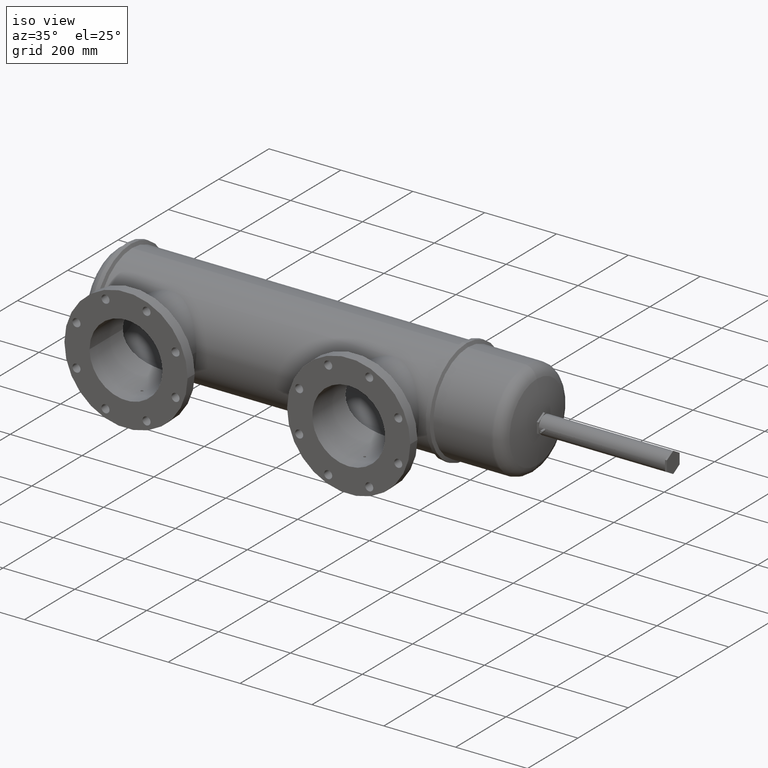
[diagram: clean part render]
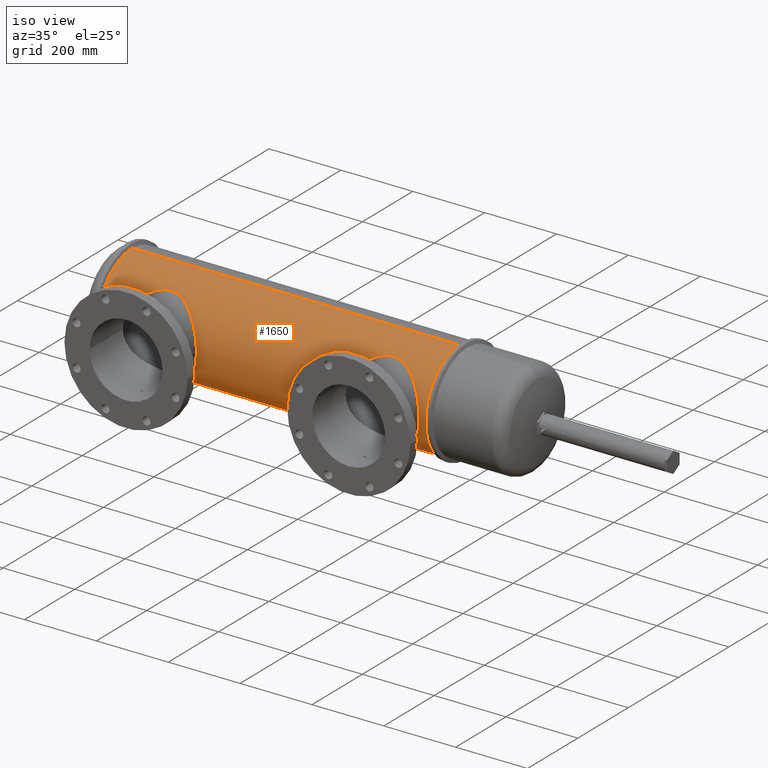
[diagram: same view with one face highlighted and labeled with its STEP entity id]
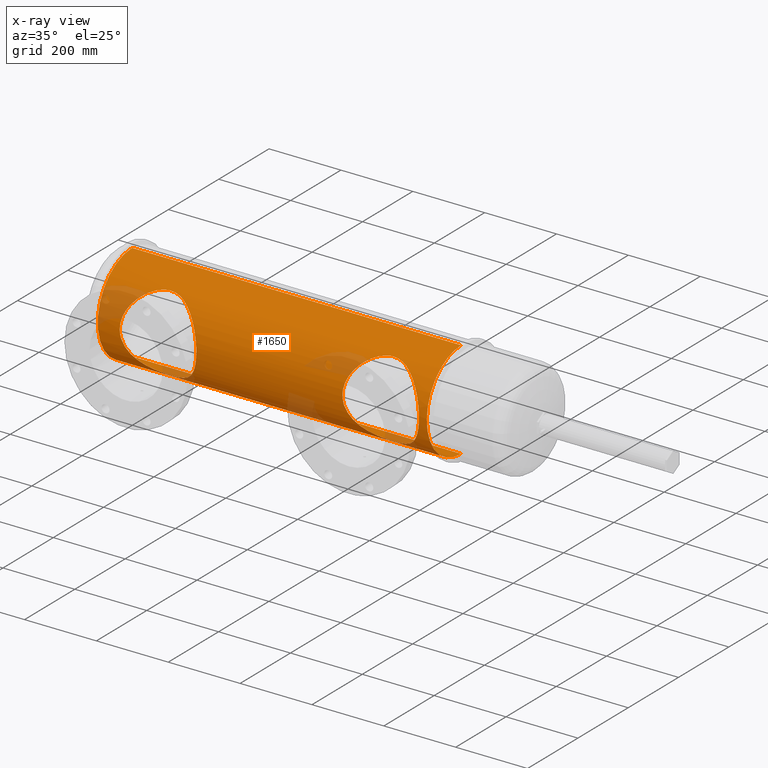
[diagram: x-ray of the same camera — body ghosted, the highlighted face saturated]
A machine part, iso view. The second image highlights one B-rep face of the part: STEP entity #1650.
The next image is the same camera in x-ray: the body ghosted, the highlighted face saturated — about 10% of this face is hidden behind the body in this view.
In plain terms, the highlighted cylindrical surface (partial cylindrical patch) has radius 136.525 mm, axis along (-1, -0, -0).
Its self-contained STEP definition (entity closure, byte-faithful):
#10 = CARTESIAN_POINT ( 'NONE',  ( 4.749995301061234800, -5.363052050226307300, -0.3654421097501814900 ) ) ;
#34 = CARTESIAN_POINT ( 'NONE',  ( 33.18546208266219800, -3.358127055180555300, -4.196850393700788800 ) ) ;
#48 = CARTESIAN_POINT ( 'NONE',  ( 34.04641906771569600, -3.430785840949731800, 4.137902672639088000 ) ) ;
#64 = CARTESIAN_POINT ( 'NONE',  ( 8.352158639856726900, -3.404754503453832900, 4.159180794707145500 ) ) ;
#65 = CARTESIAN_POINT ( 'NONE',  ( 4.737087465995205800, -5.373124396670126800, -0.1464357836292402300 ) ) ;
#86 = CARTESIAN_POINT ( 'NONE',  ( 29.20868822710924900, -5.317417034765235900, 0.7854535394784730700 ) ) ;
#88 = CARTESIAN_POINT ( 'NONE',  ( 7.734239354073992000, -3.565045451971925200, 4.022590618493392600 ) ) ;
#104 = CARTESIAN_POINT ( 'NONE',  ( 31.81343730272201100, -3.683660854557290000, -3.914959244769106400 ) ) ;
#109 = EDGE_CURVE ( 'NONE', #4416, #2132, #3197, .T. ) ;
#127 = CARTESIAN_POINT ( 'NONE',  ( 32.20156181433111400, -3.541031559088959400, -4.044189560633388900 ) ) ;
#130 = CARTESIAN_POINT ( 'NONE',  ( 7.408594226887629500, -3.685674176473716600, 3.913061992603212000 ) ) ;
#154 = FACE_BOUND ( 'NONE', #480, .T. ) ;
#160 = CARTESIAN_POINT ( 'NONE',  ( 30.20644312807175800, -4.587174237511723300, -2.802083508609902700 ) ) ;
#162 = CARTESIAN_POINT ( 'NONE',  ( 5.457733813823478100, -4.831581867657051900, 2.355279546981733100 ) ) ;
#174 = CARTESIAN_POINT ( 'NONE',  ( 38.38716324105480700, -3.278692041492476100, 4.273699459878847600 ) ) ;
#182 = CARTESIAN_POINT ( 'NONE',  ( 29.18029474302874200, -5.339462384616327400, -0.6180641936059125800 ) ) ;
#184 = CARTESIAN_POINT ( 'NONE',  ( 9.927133313563068400, -3.500032091392957200, 4.079503960908294100 ) ) ;
#199 = CARTESIAN_POINT ( 'NONE',  ( 34.72112591175518000, -3.632186258417040600, 3.962528690054355700 ) ) ;
#210 = CARTESIAN_POINT ( 'NONE',  ( 32.13785929113243600, -3.563831499023849300, 4.023665958639855800 ) ) ;
#211 = CARTESIAN_POINT ( 'NONE',  ( 9.435351120393324500, -3.394967481054748300, 4.167121872088777900 ) ) ;
#234 = CARTESIAN_POINT ( 'NONE',  ( 30.77819926925150900, -4.217855145016429200, 3.333314355170968300 ) ) ;
#235 = CARTESIAN_POINT ( 'NONE',  ( 11.16372585669081000, -4.031351664281814400, 3.556384141775962500 ) ) ;
#268 = CARTESIAN_POINT ( 'NONE',  ( 12.72643495695358600, -5.067236362355173700, 1.797786190896903300 ) ) ;
#289 = CARTESIAN_POINT ( 'NONE',  ( 9.613393546960630000, -3.426473264370500700, 4.141247085288737800 ) ) ;
#315 = CARTESIAN_POINT ( 'NONE',  ( 32.61575512459241800, -3.430964239514853200, 4.137756497397060900 ) ) ;
#344 = CARTESIAN_POINT ( 'NONE',  ( 33.33154199806774200, -3.358127055180554400, 4.196850393700788800 ) ) ;
#412 = EDGE_LOOP ( 'NONE', ( #4571, #3496, #5434, #744 ) ) ;
#425 = CARTESIAN_POINT ( 'NONE',  ( 11.78221561436801000, -4.404365714261560400, -3.082911548880091800 ) ) ;
#451 = CARTESIAN_POINT ( 'NONE',  ( 13.00991905616390200, -5.282975576761431900, -1.000471700866089900 ) ) ;
#468 = CARTESIAN_POINT ( 'NONE',  ( 11.48312885113492300, -4.216791418058220700, -3.334658646461985000 ) ) ;
#480 = EDGE_LOOP ( 'NONE', ( #1019, #6233 ) ) ;
#495 = CARTESIAN_POINT ( 'NONE',  ( 13.09869315880251700, -5.351835610164204800, -0.5036151610163508400 ) ) ;
#507 = CARTESIAN_POINT ( 'NONE',  ( 38.38716222089863800, -3.291238495927409500E-016, -5.374996292006944300 ) ) ;
#520 = CARTESIAN_POINT ( 'NONE',  ( 11.21425565118580500, -4.060269414026393500, -3.522371304407778200 ) ) ;
#546 = CARTESIAN_POINT ( 'NONE',  ( 33.90938549790716600, -3.404536396559057400, -4.159358183805486500 ) ) ;
#558 = CARTESIAN_POINT ( 'NONE',  ( 33.33154199806774200, -3.358127055180555800, -4.196850393700788800 ) ) ;
#559 = CARTESIAN_POINT ( 'NONE',  ( 5.054724875804097000, -5.129001275243231500, -1.607817231629513200 ) ) ;
#561 = CARTESIAN_POINT ( 'NONE',  ( 34.25750378459337500, -3.483293056720552900, -4.093579681073324000 ) ) ;
#590 = LINE ( 'NONE', #3139, #1548 ) ;
#612 = CARTESIAN_POINT ( 'NONE',  ( 6.078935628600526700, -4.405613760487821800, -3.081144902378614600 ) ) ;
#632 = CARTESIAN_POINT ( 'NONE',  ( 4.975464915995578600, -5.189103475868654900, 1.408263791396535500 ) ) ;
#633 = CARTESIAN_POINT ( 'NONE',  ( 7.932030321537261800, -3.501143003094056900, -4.078553421277603300 ) ) ;
#648 = CARTESIAN_POINT ( 'NONE',  ( 29.53717387163174400, -5.066844028248374900, -1.798853270842906800 ) ) ;
#650 = CARTESIAN_POINT ( 'NONE',  ( 8.004610486197925900, -3.483066926294879500, 4.093814131821048400 ) ) ;
#677 = CARTESIAN_POINT ( 'NONE',  ( 29.16385412605862000, -5.352253570869758700, 0.4991436214758844800 ) ) ;
#678 = CARTESIAN_POINT ( 'NONE',  ( 5.024739460537556800, -5.151583865074100800, 1.539364251573065000 ) ) ;
#703 = CARTESIAN_POINT ( 'NONE',  ( 32.61498192667367100, -3.431067642369711300, -4.137677459319562000 ) ) ;
#704 = CARTESIAN_POINT ( 'NONE',  ( 6.078162986578198500, -4.406121335275981800, 3.080393627759798300 ) ) ;
#719 = CARTESIAN_POINT ( 'NONE',  ( 36.74759322456946400, -4.790169043130169300, 2.438982750781833400 ) ) ;
#727 = CARTESIAN_POINT ( 'NONE',  ( 30.88397110507588300, -4.154484354375170200, -3.411734266219903900 ) ) ;
#728 = CARTESIAN_POINT ( 'NONE',  ( 10.63677552957363100, -3.765862536390427900, 3.835400357726142400 ) ) ;
#741 = CARTESIAN_POINT ( 'NONE',  ( 38.38716324105480000, -4.831222609282891200, 2.381935489443121100 ) ) ;
#744 = ORIENTED_EDGE ( 'NONE', *, *, #2472, .F. ) ;
#752 = CARTESIAN_POINT ( 'NONE',  ( 31.94020021483710200, -3.632888829098676700, -3.961879914915406700 ) ) ;
#776 = CARTESIAN_POINT ( 'NONE',  ( 38.38716324105480700, -0.3517925958185527100, 5.374994934494552000 ) ) ;
#788 = CARTESIAN_POINT ( 'NONE',  ( 33.18459971745654300, -3.358127055180553500, 4.196850393700788800 ) ) ;
#790 = CARTESIAN_POINT ( 'NONE',  ( 11.68614573550890300, -4.342647768173726800, 3.169018795738553200 ) ) ;
#803 = CARTESIAN_POINT ( 'NONE',  ( 37.37236512337007400, -5.253998926791298100, 1.142476119757490900 ) ) ;
#815 = CARTESIAN_POINT ( 'NONE',  ( 13.06650762302191300, -5.326810308565104200, 0.7217136936315978700 ) ) ;
#835 = CARTESIAN_POINT ( 'NONE',  ( 8.677445236256350100, -3.367530264656733300, 4.189310157903926200 ) ) ;
#861 = CARTESIAN_POINT ( 'NONE',  ( 29.79818619552680700, -4.874300983301054700, 2.268691986729368900 ) ) ;
#890 = CARTESIAN_POINT ( 'NONE',  ( 30.03254636757218100, -4.707394770568282800, 2.595120100943037600 ) ) ;
#916 = CARTESIAN_POINT ( 'NONE',  ( 38.38716222089863800, -3.291238495927409500E-016, -5.374996292006944300 ) ) ;
#941 = CARTESIAN_POINT ( 'NONE',  ( 37.49936391384949300, -5.352357969687934000, -0.4979902336538742900 ) ) ;
#984 = CARTESIAN_POINT ( 'NONE',  ( 9.071825342441187000, -3.360858369479644100, -4.194663711110597300 ) ) ;
#986 = CARTESIAN_POINT ( 'NONE',  ( 37.52130155258009800, -5.369452339342051200, -0.2831790458247723200 ) ) ;
#1019 = ORIENTED_EDGE ( 'NONE', *, *, #109, .T. ) ;
#1022 = CARTESIAN_POINT ( 'NONE',  ( 38.38716324105480700, -1.731907531511570200, -5.100473005379827300 ) ) ;
#1033 = CARTESIAN_POINT ( 'NONE',  ( 10.32148955287565400, -3.632323420282107800, -3.962403668371990300 ) ) ;
#1038 = LINE ( 'NONE', #1765, #2591 ) ;
#1044 = CARTESIAN_POINT ( 'NONE',  ( 38.38716324105482200, -4.049450297098955400, -3.551940436949926100 ) ) ;
#1057 = CARTESIAN_POINT ( 'NONE',  ( 12.63381031375505100, -4.998330614321843300, -1.977728165327536000 ) ) ;
#1067 = CARTESIAN_POINT ( 'NONE',  ( 38.38716324105480700, -4.273699459878845800, -3.278692041492475200 ) ) ;
#1075 = CARTESIAN_POINT ( 'NONE',  ( 7.043795130055230800, -3.851077168196163700, 3.750625180351238700 ) ) ;
#1078 = CARTESIAN_POINT ( 'NONE',  ( 10.15692606600903700, -3.574581591152290500, -4.014122239196661100 ) ) ;
#1123 = CARTESIAN_POINT ( 'NONE',  ( 6.809029701653193100, -3.971414337146976300, -3.622980225219683000 ) ) ;
#1128 = CARTESIAN_POINT ( 'NONE',  ( 34.22300952243248400, -3.474277808774925500, -4.101230261312086800 ) ) ;
#1151 = CARTESIAN_POINT ( 'NONE',  ( 5.329824089727752700, -4.924166821990907800, -2.158577972661385400 ) ) ;
#1157 = CARTESIAN_POINT ( 'NONE',  ( 4.734691604366952700, -5.374994934494551100, 0.0000000000000000000 ) ) ;
#1158 = CARTESIAN_POINT ( 'NONE',  ( 34.52345557732347500, -3.563239036663613300, 4.024190601752676100 ) ) ;
#1167 = CARTESIAN_POINT ( 'NONE',  ( 5.028354307484448800, -5.148962733395054900, -1.542696697954727000 ) ) ;
#1179 = VERTEX_POINT ( 'NONE', #3401 ) ;
#1195 = CARTESIAN_POINT ( 'NONE',  ( 5.803386294477077100, -4.588967856154513700, 2.800989964161165500 ) ) ;
#1216 = CARTESIAN_POINT ( 'NONE',  ( 29.42254961583148900, -5.153243240395061000, 1.533906599794454300 ) ) ;
#1219 = CARTESIAN_POINT ( 'NONE',  ( 7.700847915541604700, -3.576404525793253500, 4.012498647775345300 ) ) ;
#1241 = CARTESIAN_POINT ( 'NONE',  ( 31.44730503804385100, -3.850545596399057100, -3.750242178492683800 ) ) ;
#1242 = CARTESIAN_POINT ( 'NONE',  ( 6.175264956469433700, -4.343701503946404000, 3.167595078350669400 ) ) ;
#1262 = CARTESIAN_POINT ( 'NONE',  ( 29.59823190639317400, -5.021218095030566700, -1.922083574499703800 ) ) ;
#1286 = ORIENTED_EDGE ( 'NONE', *, *, #6911, .T. ) ;
#1293 = CARTESIAN_POINT ( 'NONE',  ( 29.80142268317932900, -4.871956511793791300, -2.273690974049958200 ) ) ;
#1317 = CARTESIAN_POINT ( 'NONE',  ( 29.16564990525601400, -5.350856512672694800, -0.5101157042044961500 ) ) ;
#1319 = CARTESIAN_POINT ( 'NONE',  ( 10.45027957124572500, -3.683898593072739500, 3.914747208514174100 ) ) ;
#1337 = CARTESIAN_POINT ( 'NONE',  ( 35.38739123517366600, -3.937137491355357600, 3.659423720133269800 ) ) ;
#1346 = CARTESIAN_POINT ( 'NONE',  ( 12.97304256500849600, -5.254520519561398700, 1.140048141309503800 ) ) ;
#1371 = CARTESIAN_POINT ( 'NONE',  ( 13.09843008160019400, -5.351630728787300000, 0.5058489228996163600 ) ) ;
#1393 = FACE_OUTER_BOUND ( 'NONE', #412, .T. ) ;
#1398 = CARTESIAN_POINT ( 'NONE',  ( 11.92447359797004900, -4.498262420636932800, 2.942278838712273400 ) ) ;
#1432 = CARTESIAN_POINT ( 'NONE',  ( 37.12564823584094100, -5.066649253465597800, 1.799341419851467000 ) ) ;
#1441 = CARTESIAN_POINT ( 'NONE',  ( 30.47919314578282600, -4.405449913220764700, 3.081367542044315400 ) ) ;
#1454 = CARTESIAN_POINT ( 'NONE',  ( 37.23504222130115700, -5.149181556150319100, 1.543121040944050600 ) ) ;
#1503 = CARTESIAN_POINT ( 'NONE',  ( 36.63316058204620200, -4.708916699110397500, -2.594330065424194800 ) ) ;
#1542 = CARTESIAN_POINT ( 'NONE',  ( 8.637187697404682400, -3.368032972215072400, -4.188972017815157000 ) ) ;
#1544 = CARTESIAN_POINT ( 'NONE',  ( 36.71384947045074700, -4.765943994535923000, -2.488275708877077700 ) ) ;
#1548 = VECTOR ( 'NONE', #6452, 39.37007874015748100 ) ;
#1564 = CARTESIAN_POINT ( 'NONE',  ( 2.329100978302522100, 0.0000000000000000000, 5.374994934494546700 ) ) ;
#1568 = CARTESIAN_POINT ( 'NONE',  ( 13.06697084286785100, -5.327169918637096700, -0.7190667864626275600 ) ) ;
#1591 = CARTESIAN_POINT ( 'NONE',  ( 9.218029382528939700, -3.369536314779918200, -4.187699952006111600 ) ) ;
#1595 = B_SPLINE_CURVE_WITH_KNOTS ( 'NONE', 3,
 ( #558, #34, #4019, #6872, #703, #5221, #127, #752, #104, #2414, #5173, #4062, #1241, #5125, #2358, #4039, #2387, #727, #2880, #4624, #3524, #4649, #1787, #160, #4601, #6822, #1857, #1293, #6802, #1262, #648, #5779, #1811, #5149, #5196, #3475, #4555, #6310, #1839, #2959, #5746, #182, #3498, #1317, #2857, #5725, #6778, #4091, #6290, #677, #3421, #5698, #2926, #86, #3447, #2318, #6850, #3997, #1216, #1762, #5681, #6237, #4575, #2343, #6258, #2899, #861, #4219, #2525, #890, #4782, #5904, #4119, #1441, #6368, #234, #3082, #4170, #5346, #3603, #1986, #6969, #6445, #6344, #4142, #5297, #210, #1957, #2467, #2980, #4706, #315, #6900, #3556, #788, #5271 ),
 .UNSPECIFIED., .F., .F.,
 ( 4, 2, 2, 2, 2, 2, 2, 2, 2, 2, 2, 2, 2, 2, 2, 2, 2, 2, 2, 2, 2, 2, 2, 2, 2, 2, 2, 2, 2, 2, 2, 2, 2, 2, 2, 2, 2, 2, 2, 2, 2, 2, 2, 2, 2, 2, 2, 4 ),
 ( 0.3505067490020541400, 0.3614597589150289600, 0.3724127688280037800, 0.3833657787409786000, 0.3943187886539534200, 0.3997952936104406900, 0.4025335460886843600, 0.4052717985669279700, 0.4162248084799030600, 0.4271778183928781600, 0.4381308283058532600, 0.4436073332623408100, 0.4490838382188283600, 0.4600368481318035700, 0.4709898580447788900, 0.4819428679577541500, 0.4846811204359980400, 0.4874193729142419800, 0.4928958778707298600, 0.5038488877837056200, 0.5093253927401935100, 0.5120636452184373900, 0.5148018976966812800, 0.5257549076096570400, 0.5367079175226326900, 0.5421844224791204600, 0.5449226749573643500, 0.5476609274356083500, 0.5586139373485841100, 0.5695669472615597600, 0.5723051997398036500, 0.5750434522180475300, 0.5805199571745350800, 0.5914729670875100700, 0.5969494720439975100, 0.6024259770004850600, 0.6133789869134598200, 0.6243319968264347000, 0.6352850067394093500, 0.6407615116958967900, 0.6462380166523842300, 0.6571910265653588800, 0.6681440364783337600, 0.6708822889565774200, 0.6736205414348210900, 0.6790970463913084100, 0.6900500563042835100, 0.7010030662172586100 ),
 .UNSPECIFIED. ) ;
#1610 = CARTESIAN_POINT ( 'NONE',  ( 13.08937599131494700, -5.344581473514010000, -0.5755391024044070900 ) ) ;
#1625 = CARTESIAN_POINT ( 'NONE',  ( 38.38716324105481400, -5.340347244795311500, -0.7035764928719249200 ) ) ;
#1633 = CARTESIAN_POINT ( 'NONE',  ( 7.535674969970213700, -3.634579411250905800, 3.960342157427121800 ) ) ;
#1637 = CIRCLE ( 'NONE', #4728, 5.374994934494546700 ) ;
#1639 = CARTESIAN_POINT ( 'NONE',  ( 12.18656887946775800, -4.676750342634177200, -2.649428213734910100 ) ) ;
#1640 = CARTESIAN_POINT ( 'NONE',  ( 35.09872549174546200, -3.793111764617897100, -3.809011053692771000 ) ) ;
#1650 = ADVANCED_FACE ( 'NONE', ( #1393, #1651, #154 ), #3375, .T. ) ;
#1651 = FACE_BOUND ( 'NONE', #2370, .T. ) ;
#1664 = CARTESIAN_POINT ( 'NONE',  ( 6.697232394793386100, -4.032532008853944000, -3.555045040516758600 ) ) ;
#1680 = CARTESIAN_POINT ( 'NONE',  ( 7.536763346478774200, -3.634212492660442000, -3.960667355342717900 ) ) ;
#1717 = CARTESIAN_POINT ( 'NONE',  ( 33.90677945412308200, -3.404127868641926700, 4.159691239762260300 ) ) ;
#1726 = CARTESIAN_POINT ( 'NONE',  ( 5.870105527201907600, -4.544132148642273900, -2.870932988581285100 ) ) ;
#1762 = CARTESIAN_POINT ( 'NONE',  ( 29.49175183636795700, -5.101070782232366900, 1.694339353805898400 ) ) ;
#1764 = CARTESIAN_POINT ( 'NONE',  ( 4.742344596947267700, -5.369013414700703800, 0.2913352662351738100 ) ) ;
#1765 = CARTESIAN_POINT ( 'NONE',  ( -0.0007266566569941966800, 6.582470341961989000E-016, -5.374994934494551100 ) ) ;
#1787 = CARTESIAN_POINT ( 'NONE',  ( 30.29615798105300300, -4.526530754207862600, -2.899027217141162200 ) ) ;
#1795 = VERTEX_POINT ( 'NONE', #1564 ) ;
#1805 = CARTESIAN_POINT ( 'NONE',  ( 38.38716324105480700, -5.100473005379825500, 1.731907531511572200 ) ) ;
#1811 = CARTESIAN_POINT ( 'NONE',  ( 29.45401959723253800, -5.129534422647135500, -1.606114705732560700 ) ) ;
#1814 = CARTESIAN_POINT ( 'NONE',  ( 4.838090605681793800, -5.294645987317149900, 0.9286047940652690800 ) ) ;
#1839 = CARTESIAN_POINT ( 'NONE',  ( 29.25436531319096300, -5.282048789812295200, -1.005275660466472500 ) ) ;
#1857 = CARTESIAN_POINT ( 'NONE',  ( 29.95323023907021600, -4.763109091385851800, -2.493676539137262200 ) ) ;
#1859 = CARTESIAN_POINT ( 'NONE',  ( 12.83805490833506200, -5.151360490264528900, 1.540261224434253300 ) ) ;
#1874 = CARTESIAN_POINT ( 'NONE',  ( 36.18099180002105400, -4.403574148782837500, 3.084037182267839400 ) ) ;
#1891 = CARTESIAN_POINT ( 'NONE',  ( 13.12096160511428000, -5.369186652944945200, 0.2888968824829787900 ) ) ;
#1904 = CARTESIAN_POINT ( 'NONE',  ( 37.46746464679831900, -5.327525398302574500, 0.7266405991195805700 ) ) ;
#1916 = CARTESIAN_POINT ( 'NONE',  ( 8.568125599478809900, -3.377540328420775200, 4.181245314815281900 ) ) ;
#1936 = CARTESIAN_POINT ( 'NONE',  ( 12.53320677858853400, -4.924126194123366500, 2.158706138354186800 ) ) ;
#1957 = CARTESIAN_POINT ( 'NONE',  ( 32.20479891169314600, -3.541972124578498100, 4.042921736672705700 ) ) ;
#1973 = CARTESIAN_POINT ( 'NONE',  ( 37.20870071964124300, -5.129234433115599700, 1.608111653534045600 ) ) ;
#1982 = CARTESIAN_POINT ( 'NONE',  ( 33.33154199806774200, -3.358127055180555800, -4.196850393700788800 ) ) ;
#1986 = CARTESIAN_POINT ( 'NONE',  ( 31.27286969653202000, -3.938610830552312900, 3.657840034790097700 ) ) ;
#1999 = CARTESIAN_POINT ( 'NONE',  ( 37.28473110635594900, -5.186951014931965500, 1.410968608403149400 ) ) ;
#2021 = CARTESIAN_POINT ( 'NONE',  ( 36.18533050011352300, -4.406381304223196500, -3.080042646531192300 ) ) ;
#2067 = CARTESIAN_POINT ( 'NONE',  ( 36.08828130794473300, -4.344004859863451500, -3.167158007095356900 ) ) ;
#2090 = CARTESIAN_POINT ( 'NONE',  ( 37.52830144567800400, -5.374923922887623100, 0.07733195161121406100 ) ) ;
#2108 = CARTESIAN_POINT ( 'NONE',  ( 13.05399001146451900, -5.317095870056690800, -0.7900082659254659100 ) ) ;
#2116 = CARTESIAN_POINT ( 'NONE',  ( 38.38716324105480700, -1.393642492339278700, -5.203084583193050800 ) ) ;
#2129 = CARTESIAN_POINT ( 'NONE',  ( 12.76975701528182900, -5.099885154093405100, -1.697905326054724600 ) ) ;
#2132 = VERTEX_POINT ( 'NONE', #1982 ) ;
#2141 = CARTESIAN_POINT ( 'NONE',  ( 38.38716324105481400, -5.100473005379825500, -1.731907531511574600 ) ) ;
#2154 = CARTESIAN_POINT ( 'NONE',  ( 12.72630832222716400, -5.067265110740080100, -1.792905499786012300 ) ) ;
#2167 = CARTESIAN_POINT ( 'NONE',  ( 38.38716324105480000, -4.664590448745811600, -2.693682334980163100 ) ) ;
#2177 = CARTESIAN_POINT ( 'NONE',  ( 7.801237729148797800, -3.543106432729288700, 4.041927902000368000 ) ) ;
#2181 = CARTESIAN_POINT ( 'NONE',  ( 2.329100978302522100, 6.582470341961986000E-016, -5.374994934494546700 ) ) ;
#2185 = CARTESIAN_POINT ( 'NONE',  ( 33.47795870184214800, -3.361118567121938100, -4.194455253217949300 ) ) ;
#2200 = CARTESIAN_POINT ( 'NONE',  ( 5.015502109719100200, -5.158713082136892500, -1.509777941000529200 ) ) ;
#2227 = CARTESIAN_POINT ( 'NONE',  ( 4.955099241693596400, -5.204702032084044000, -1.344041317996671300 ) ) ;
#2236 = EDGE_CURVE ( 'NONE', #2540, #1179, #3388, .T. ) ;
#2237 = CARTESIAN_POINT ( 'NONE',  ( 36.58521950162877800, -4.675732909653360600, 2.651707160338050900 ) ) ;
#2255 = CARTESIAN_POINT ( 'NONE',  ( 4.734691604366952700, -5.374994934494551100, 0.0000000000000000000 ) ) ;
#2263 = CARTESIAN_POINT ( 'NONE',  ( 34.45645694442750800, -3.541390699786285200, 4.043431011295386800 ) ) ;
#2309 = B_SPLINE_CURVE_WITH_KNOTS ( 'NONE', 3,
 ( #2628, #4911, #5466, #495, #1610, #1568, #2108, #451, #3187, #6026, #4891, #2129, #3810, #2154, #4393, #2648, #1057, #6637, #5515, #6079, #4961, #4372, #6591, #1639, #2716, #6576, #7140, #425, #5534, #468, #4345, #520, #6615, #3237, #3283, #7183, #3862, #4420, #1033, #1078, #4990, #6555, #5493, #7092, #3766, #6049, #3783, #4320, #1591, #2694, #984, #7119, #6010, #3253, #1542, #5447, #3345, #6712, #5610, #633, #3972, #1680, #6196, #3904, #4511, #5588, #3948, #1123, #1664, #7231, #5030, #6754, #612, #4483, #5658, #6683, #1726, #2808, #4531, #3400, #3324, #2834, #1151, #6123, #2766, #6106, #559, #1167, #2200, #5079, #2227, #2789, #6142, #6735, #5563, #10, #4468, #5051, #65, #4442, #2741, #6167, #3926, #2255 ),
 .UNSPECIFIED., .F., .F.,
 ( 4, 2, 2, 2, 2, 2, 2, 2, 2, 2, 2, 2, 2, 2, 2, 2, 2, 2, 2, 2, 2, 2, 2, 2, 2, 2, 2, 2, 2, 2, 2, 2, 2, 2, 2, 2, 2, 2, 2, 2, 2, 2, 2, 2, 2, 2, 2, 2, 2, 2, 2, 4 ),
 ( 0.3515008116880530300, 0.3624580377799088700, 0.3679366508258368200, 0.3734152638717647100, 0.3843724899636206100, 0.3953297160554764500, 0.3980690225784404000, 0.4008083291014044000, 0.4062869421473323000, 0.4172441682391880800, 0.4227227812851159200, 0.4254620878080798100, 0.4282013943310437100, 0.4391586204228992700, 0.4501158465147548900, 0.4610730726066104600, 0.4665516856525382400, 0.4720302986984660200, 0.4829875247903215900, 0.4939447508821771500, 0.4966840574051409300, 0.4994233639281047100, 0.5049019769740325000, 0.5158592030658879500, 0.5213378161118157300, 0.5240771226347795700, 0.5268164291577435200, 0.5377736552495990800, 0.5432522682955269700, 0.5487308813414546500, 0.5596881074333103200, 0.5706453335251660000, 0.5761239465710937800, 0.5816025596170215600, 0.5925597857088772400, 0.6035170118007329200, 0.6144742378925884800, 0.6172135444155524300, 0.6199528509385163800, 0.6254314639844440500, 0.6363886900762993900, 0.6473459161681549600, 0.6583031422600103000, 0.6610424487829742500, 0.6637817553059379700, 0.6692603683518657500, 0.6802175944437212100, 0.6911748205355765500, 0.6966534335815043300, 0.6993927401044681700, 0.7007623933659501400, 0.7021320466274320000 ),
 .UNSPECIFIED. ) ;
#2318 = CARTESIAN_POINT ( 'NONE',  ( 29.25221056336916400, -5.283712562841944100, 0.9966173815637213700 ) ) ;
#2320 = CARTESIAN_POINT ( 'NONE',  ( 5.329545187030919200, -4.924509255111255300, 2.154951796788854100 ) ) ;
#2343 = CARTESIAN_POINT ( 'NONE',  ( 29.59589213525881100, -5.023115058168715000, 1.913963023679589000 ) ) ;
#2358 = CARTESIAN_POINT ( 'NONE',  ( 31.35844171342417800, -3.894805987775812600, -3.704258531541860100 ) ) ;
#2360 = CARTESIAN_POINT ( 'NONE',  ( 5.383448722711656300, -4.885266776125746400, 2.241818145613846200 ) ) ;
#2367 = CARTESIAN_POINT ( 'NONE',  ( 2.329100978302522100, 0.0000000000000000000, 0.0000000000000000000 ) ) ;
#2370 = EDGE_LOOP ( 'NONE', ( #1286, #2996 ) ) ;
#2374 = CARTESIAN_POINT ( 'NONE',  ( 34.55664486026891100, -3.574485327561725000, 4.014207916199843000 ) ) ;
#2375 = CARTESIAN_POINT ( 'NONE',  ( 38.38716324105481400, -3.551940436949925200, 4.049450297098954500 ) ) ;
#2387 = CARTESIAN_POINT ( 'NONE',  ( 31.10034724173829100, -4.030802279348264100, -3.557007722629789800 ) ) ;
#2389 = CARTESIAN_POINT ( 'NONE',  ( 13.05349818413392900, -5.316714518183000700, 0.7925660783412354900 ) ) ;
#2401 = CARTESIAN_POINT ( 'NONE',  ( 35.21348925015851000, -3.848222403130163300, 3.753559251665106200 ) ) ;
#2414 = CARTESIAN_POINT ( 'NONE',  ( 31.62825248783974500, -3.764988313533812000, -3.836255557602437100 ) ) ;
#2417 = CARTESIAN_POINT ( 'NONE',  ( 8.640859465434749300, -3.370490101769072900, 4.186930561479394800 ) ) ;
#2432 = CARTESIAN_POINT ( 'NONE',  ( 34.25274619327053200, -3.481550046135930100, 4.095103135368653100 ) ) ;
#2444 = CARTESIAN_POINT ( 'NONE',  ( 8.786768588174446400, -3.360459352539372400, 4.194987488943047200 ) ) ;
#2467 = CARTESIAN_POINT ( 'NONE',  ( 32.23863501590674500, -3.531347263790384900, 4.052201853336955900 ) ) ;
#2468 = CARTESIAN_POINT ( 'NONE',  ( 9.648900511783429200, -3.433721602578100600, 4.135242027166822400 ) ) ;
#2472 = EDGE_CURVE ( 'NONE', #3166, #1795, #1637, .T. ) ;
#2498 = CARTESIAN_POINT ( 'NONE',  ( 12.23104111740538600, -4.707436325864231100, 2.596973328655777000 ) ) ;
#2525 = CARTESIAN_POINT ( 'NONE',  ( 29.95158219651941800, -4.764485451339662200, 2.488753151331986900 ) ) ;
#2540 = VERTEX_POINT ( 'NONE', #916 ) ;
#2554 = CARTESIAN_POINT ( 'NONE',  ( 37.03629176620659500, -5.000168852100794800, -1.973083182656304900 ) ) ;
#2591 = VECTOR ( 'NONE', #5750, 39.37007874015748100 ) ;
#2603 = CARTESIAN_POINT ( 'NONE',  ( 37.47368729753196000, -5.332389051237191400, -0.6763775022265817700 ) ) ;
#2622 = DIRECTION ( 'NONE',  ( 0.0000000000000000000, 0.0000000000000000000, 1.000000000000000000 ) ) ;
#2628 = CARTESIAN_POINT ( 'NONE',  ( 13.12839239176852900, -5.374994934494551100, 5.138218610725904000E-016 ) ) ;
#2632 = CARTESIAN_POINT ( 'NONE',  ( 35.61918810121570500, -4.063047776883146300, -3.519163638445227600 ) ) ;
#2648 = CARTESIAN_POINT ( 'NONE',  ( 12.66562760809011400, -5.021951844297844600, -1.917008199121051900 ) ) ;
#2672 = CARTESIAN_POINT ( 'NONE',  ( 33.33154199806774200, -3.358127055180555800, -4.196850393700788800 ) ) ;
#2694 = CARTESIAN_POINT ( 'NONE',  ( 9.108428328026860800, -3.362584831877022800, -4.193280651706405000 ) ) ;
#2697 = B_SPLINE_CURVE_WITH_KNOTS ( 'NONE', 3,
 ( #5152, #3971, #1764, #6217, #6804, #1814, #5727, #2882, #4021, #5682, #3500, #632, #678, #4576, #4040, #6753, #2320, #2360, #6260, #5098, #162, #6291, #6824, #1195, #4984, #704, #1242, #6851, #4556, #4065, #4414, #3399, #3998, #2859, #3477, #1075, #3449, #130, #1633, #1219, #88, #2177, #6103, #6781, #650, #2833, #64, #5749, #1916, #2417, #835, #2444, #6970, #6312, #6347, #211, #4121, #289, #2468, #3013, #5272, #184, #4734, #5827, #1319, #728, #6396, #3040, #6948, #4650, #235, #6371, #3604, #790, #4626, #4093, #1398, #6921, #6874, #3525, #3558, #2498, #4678, #6418, #1936, #3583, #268, #1859, #4143, #1346, #5222, #2389, #815, #4708, #1371, #1891, #5301, #5780 ),
 .UNSPECIFIED., .F., .F.,
 ( 4, 2, 2, 2, 2, 2, 2, 2, 2, 2, 2, 2, 2, 2, 2, 2, 2, 2, 2, 2, 2, 2, 2, 2, 2, 2, 2, 2, 2, 2, 2, 2, 2, 2, 2, 2, 2, 2, 2, 2, 2, 2, 2, 2, 2, 2, 2, 2, 4 ),
 ( 0.0000000000000000000, 0.01098440036525158900, 0.02196880073050317900, 0.02746100091312896800, 0.03020710100444186700, 0.03295320109575476000, 0.04393760146100628800, 0.05492200182625781000, 0.06041420200888358800, 0.06316030210019647800, 0.06590640219150935300, 0.07689080255676088200, 0.08787520292201239600, 0.09885960328726392500, 0.1016057033785768300, 0.1043518034698897500, 0.1098440036525156500, 0.1208284040177674300, 0.1318128043830191800, 0.1427972047482709300, 0.1455433048395839400, 0.1482894049308969000, 0.1537816051135228200, 0.1647660054787746800, 0.1675121055700876700, 0.1702582056614006000, 0.1757504058440265100, 0.1867348062092782900, 0.1922270063919041800, 0.1949731064832172000, 0.1977192065745301300, 0.2087036069397819900, 0.2196880073050337900, 0.2251802074876597100, 0.2306724076702856300, 0.2416568080355372700, 0.2526412084007889600, 0.2636256087660406300, 0.2663717088573535600, 0.2691178089486664900, 0.2746100091312922400, 0.2855944094965438000, 0.2965788098617953600, 0.3075632102270469100, 0.3185476105922984700, 0.3295320109575499700, 0.3350242111401757800, 0.3405164113228015300, 0.3515008116880530300 ),
 .UNSPECIFIED. ) ;
#2716 = CARTESIAN_POINT ( 'NONE',  ( 12.16536736735516300, -4.662017190132305100, -2.675263455450418900 ) ) ;
#2741 = CARTESIAN_POINT ( 'NONE',  ( 4.735291213279829500, -5.374526764760349600, -0.07326570957642311600 ) ) ;
#2744 = CARTESIAN_POINT ( 'NONE',  ( 34.04990261046089000, -3.431479756196452500, -4.137332918287935300 ) ) ;
#2766 = CARTESIAN_POINT ( 'NONE',  ( 5.137573269485719700, -5.066545868153586900, -1.799647507006121300 ) ) ;
#2776 = CARTESIAN_POINT ( 'NONE',  ( 36.45685870915347900, -4.587024784032693400, 2.804212620247949200 ) ) ;
#2778 = CARTESIAN_POINT ( 'NONE',  ( 38.38716324105480000, -1.393642492339274500, 5.203084583193051700 ) ) ;
#2789 = CARTESIAN_POINT ( 'NONE',  ( 4.890624735384911900, -5.254071312789601900, -1.142148953351998800 ) ) ;
#2796 = CARTESIAN_POINT ( 'NONE',  ( 36.62712323699337700, -4.705002058502080000, 2.599455797523736200 ) ) ;
#2808 = CARTESIAN_POINT ( 'NONE',  ( 5.802733112361401000, -4.589702382919322900, -2.797944466155917600 ) ) ;
#2817 = CARTESIAN_POINT ( 'NONE',  ( 36.36744549679596600, -4.526456800143693100, 2.900679138041979000 ) ) ;
#2833 = CARTESIAN_POINT ( 'NONE',  ( 8.211491594032283500, -3.431855674347728000, 4.137019752032724500 ) ) ;
#2834 = CARTESIAN_POINT ( 'NONE',  ( 5.400493419426305200, -4.872633542367298200, -2.272205673016492300 ) ) ;
#2857 = CARTESIAN_POINT ( 'NONE',  ( 29.16137028401136200, -5.354189368195068100, -0.4738605334502913900 ) ) ;
#2859 = CARTESIAN_POINT ( 'NONE',  ( 6.701341273558085700, -4.030244293356223500, 3.557649276247222900 ) ) ;
#2880 = CARTESIAN_POINT ( 'NONE',  ( 30.77977080559229600, -4.216909976620645000, -3.334493015279349900 ) ) ;
#2882 = CARTESIAN_POINT ( 'NONE',  ( 4.881715044163735600, -5.260996309752886000, 1.101694188635341300 ) ) ;
#2899 = CARTESIAN_POINT ( 'NONE',  ( 29.72696781663972800, -4.926253895232683500, 2.153887234646655500 ) ) ;
#2918 = CARTESIAN_POINT ( 'NONE',  ( 38.38716324105480700, -5.203084583193049000, 1.393642492339278100 ) ) ;
#2926 = CARTESIAN_POINT ( 'NONE',  ( 29.19576777686445000, -5.327441141267967400, 0.7143053063055481200 ) ) ;
#2946 = CARTESIAN_POINT ( 'NONE',  ( 35.61285000366996200, -4.059478795054337400, 3.523282586746589100 ) ) ;
#2948 = CARTESIAN_POINT ( 'NONE',  ( 38.38716324105480700, -5.340347244795312400, 0.7035764928719228100 ) ) ;
#2959 = CARTESIAN_POINT ( 'NONE',  ( 29.21018590953377700, -5.316249281411797900, -0.7956608135010079200 ) ) ;
#2969 = CARTESIAN_POINT ( 'NONE',  ( 35.55721298041774500, -4.028447433758658200, 3.558689927093841500 ) ) ;
#2980 = CARTESIAN_POINT ( 'NONE',  ( 32.34054017046566500, -3.500700496957448700, 4.078774058923204200 ) ) ;
#2996 = ORIENTED_EDGE ( 'NONE', *, *, #3177, .T. ) ;
#3013 = CARTESIAN_POINT ( 'NONE',  ( 9.719202430897018600, -3.449094049784079600, 4.122429005210682000 ) ) ;
#3019 = DIRECTION ( 'NONE',  ( 0.0000000000000000000, 0.0000000000000000000, 1.000000000000000000 ) ) ;
#3024 = CARTESIAN_POINT ( 'NONE',  ( 37.50906580462774500, -5.359917607825670100, 0.4039425270666779900 ) ) ;
#3035 = AXIS2_PLACEMENT_3D ( 'NONE', #5373, #4246, #2622 ) ;
#3040 = CARTESIAN_POINT ( 'NONE',  ( 10.81876420108779200, -3.851730202618449900, 3.749189496312674400 ) ) ;
#3082 = CARTESIAN_POINT ( 'NONE',  ( 30.88305752450362700, -4.155006196860093800, 3.411121821824958400 ) ) ;
#3120 = CARTESIAN_POINT ( 'NONE',  ( 36.50502429565681700, -4.620287402687752700, -2.747177363736747600 ) ) ;
#3139 = CARTESIAN_POINT ( 'NONE',  ( -0.0007266566569941966800, 0.0000000000000000000, 5.374994934494551100 ) ) ;
#3163 = CARTESIAN_POINT ( 'NONE',  ( 37.45483936806378700, -5.317760996905615700, -0.7831210448192933400 ) ) ;
#3166 = VERTEX_POINT ( 'NONE', #2181 ) ;
#3177 = EDGE_CURVE ( 'NONE', #3584, #4776, #2309, .T. ) ;
#3187 = CARTESIAN_POINT ( 'NONE',  ( 12.97371576234585100, -5.255038794679499000, -1.137638798663412700 ) ) ;
#3189 = CARTESIAN_POINT ( 'NONE',  ( 37.24106329757331200, -5.153645817307132200, -1.532506618653986200 ) ) ;
#3197 = B_SPLINE_CURVE_WITH_KNOTS ( 'NONE', 3,
 ( #4638, #6153, #5210, #1717, #48, #2432, #5182, #3541, #2263, #1158, #2374, #199, #5597, #3328, #2401, #1337, #6179, #2969, #2946, #4616, #5236, #6861, #1874, #2817, #2776, #2237, #2796, #6722, #719, #5814, #4188, #4769, #1432, #1973, #1454, #1999, #6462, #803, #4693, #1904, #6384, #3024, #6935, #4745, #6958, #4722, #2090, #3216, #986, #941, #7049, #2603, #7024, #3163, #3785, #4347, #4300, #5430, #3189, #4822, #5468, #4868, #2554, #4895, #6485, #1544, #1503, #3120, #4252, #7077, #5380, #2021, #2067, #3711, #5943, #2632, #5408, #3742, #5964, #7094, #1640, #6110, #7216, #6686, #3285, #6640, #5536, #561, #1128, #2744, #546, #6592, #4395, #5519, #2185, #3877, #3811, #2672 ),
 .UNSPECIFIED., .F., .F.,
 ( 4, 2, 2, 2, 2, 2, 2, 2, 2, 2, 2, 2, 2, 2, 2, 2, 2, 2, 2, 2, 2, 2, 2, 2, 2, 2, 2, 2, 2, 2, 2, 2, 2, 2, 2, 2, 2, 2, 2, 2, 2, 2, 2, 2, 2, 2, 2, 2, 4 ),
 ( 0.0000000000000000000, 0.01095333590631392500, 0.02190667181262785000, 0.02738333976578496300, 0.03012167374236353000, 0.03286000771894209700, 0.04381334362525671200, 0.05476667953157130600, 0.06024334748472849600, 0.06572001543788566500, 0.07667335134420000300, 0.08762668725051435400, 0.09858002315682870600, 0.1040566911099858700, 0.1095333590631430400, 0.1204866949694572100, 0.1314400308757713900, 0.1369166988289285100, 0.1423933667820856400, 0.1533467026883999500, 0.1643000385947142900, 0.1670383725712928400, 0.1697767065478714400, 0.1752533745010285400, 0.1862067104073427700, 0.1916833783604999200, 0.1944217123370785000, 0.1971600463136570800, 0.2081133822199713900, 0.2190667181262857000, 0.2245433860794428800, 0.2300200540326000600, 0.2409733899389143700, 0.2519267258452286800, 0.2574033937983856700, 0.2628800617515427700, 0.2738333976578568000, 0.2847867335641708900, 0.2902634015173279300, 0.2957400694704849800, 0.3066934053767990700, 0.3176467412831131500, 0.3231234092362702000, 0.3258617432128485500, 0.3286000771894269100, 0.3395534130957403300, 0.3450300810488970400, 0.3477684150254756200, 0.3505067490020541400 ),
 .UNSPECIFIED. ) ;
#3216 = CARTESIAN_POINT ( 'NONE',  ( 37.52856497259661900, -5.375129687310911600, -0.1393514884789728300 ) ) ;
#3223 = CARTESIAN_POINT ( 'NONE',  ( 38.38716324105480700, -0.3517925958185499400, -5.374994934494552000 ) ) ;
#3225 = EDGE_CURVE ( 'NONE', #2540, #3166, #1038, .T. ) ;
#3237 = CARTESIAN_POINT ( 'NONE',  ( 11.04565344408530500, -3.967901061828560800, -3.626076733483119000 ) ) ;
#3253 = CARTESIAN_POINT ( 'NONE',  ( 8.781071664344915800, -3.358360180884520500, -4.196663856835551000 ) ) ;
#3283 = CARTESIAN_POINT ( 'NONE',  ( 10.98844099628797500, -3.937685009853463900, -3.658835478396023500 ) ) ;
#3285 = CARTESIAN_POINT ( 'NONE',  ( 34.46217651812439400, -3.542763779767735600, -4.042292494584070400 ) ) ;
#3300 = CARTESIAN_POINT ( 'NONE',  ( 13.12839239176852900, -5.374994934494551100, 5.138218610725904000E-016 ) ) ;
#3324 = CARTESIAN_POINT ( 'NONE',  ( 5.551361369433413600, -4.764438545691607600, -2.491104494600591100 ) ) ;
#3328 = CARTESIAN_POINT ( 'NONE',  ( 35.09423647911842200, -3.791025458678984900, 3.811081514814156400 ) ) ;
#3345 = CARTESIAN_POINT ( 'NONE',  ( 8.352151506641552800, -3.407035000585845600, -4.157281185532389700 ) ) ;
#3375 = CYLINDRICAL_SURFACE ( 'NONE', #3035, 5.374994934494551100 ) ;
#3388 = B_SPLINE_CURVE_WITH_KNOTS ( 'NONE', 3,
 ( #507, #3223, #7201, #2116, #1022, #5476, #6092, #7152, #4405, #1044, #1067, #2167, #5507, #2141, #6060, #1625, #5185, #6835, #2948, #2918, #1805, #741, #6697, #4592, #5713, #2375, #174, #4012, #6891, #4565, #2778, #5213, #776, #6281 ),
 .UNSPECIFIED., .F., .F.,
 ( 4, 2, 2, 2, 2, 2, 2, 2, 2, 2, 2, 2, 2, 2, 2, 2, 4 ),
 ( 0.2500000000000000000, 0.2812500000000000000, 0.3125000000000000000, 0.3437500000000000600, 0.3750000000000001100, 0.4062500000000001100, 0.4375000000000001100, 0.4687500000000001100, 0.5000000000000001100, 0.5312500000000001100, 0.5625000000000001100, 0.5937500000000001100, 0.6250000000000002200, 0.6562500000000002200, 0.6875000000000002200, 0.7187500000000001100, 0.7500000000000000000 ),
 .UNSPECIFIED. ) ;
#3399 = CARTESIAN_POINT ( 'NONE',  ( 6.484916304698117500, -4.154660656597281200, 3.410554906784425600 ) ) ;
#3400 = CARTESIAN_POINT ( 'NONE',  ( 5.631560418646303700, -4.707773061222703800, -2.596373632629752800 ) ) ;
#3401 = CARTESIAN_POINT ( 'NONE',  ( 38.38716222089863800, -1.522612580411271900E-015, 5.374996292006944300 ) ) ;
#3421 = CARTESIAN_POINT ( 'NONE',  ( 29.17307091150174600, -5.345077195285376200, 0.5709077610685652200 ) ) ;
#3447 = CARTESIAN_POINT ( 'NONE',  ( 29.21558517489337300, -5.312070820295852000, 0.8208182062042351800 ) ) ;
#3449 = CARTESIAN_POINT ( 'NONE',  ( 7.162649366617317900, -3.793916889308772700, 3.808207311859305800 ) ) ;
#3475 = CARTESIAN_POINT ( 'NONE',  ( 29.37793367314294100, -5.187270853815721100, -1.409774284245505900 ) ) ;
#3477 = CARTESIAN_POINT ( 'NONE',  ( 6.813138459787461800, -3.969236786676898700, 3.625347421996602200 ) ) ;
#3496 = ORIENTED_EDGE ( 'NONE', *, *, #2236, .T. ) ;
#3498 = CARTESIAN_POINT ( 'NONE',  ( 29.17511227891486000, -5.343492911992850500, -0.5822086828363080000 ) ) ;
#3500 = CARTESIAN_POINT ( 'NONE',  ( 4.921584769260128700, -5.230365787966412100, 1.238974867637292000 ) ) ;
#3524 = CARTESIAN_POINT ( 'NONE',  ( 30.48185464238788700, -4.403727102022624100, -3.083822293188243100 ) ) ;
#3525 = CARTESIAN_POINT ( 'NONE',  ( 12.06022044695413000, -4.589614312075223500, 2.798084776729283400 ) ) ;
#3541 = CARTESIAN_POINT ( 'NONE',  ( 34.42263760077730700, -3.530787819162855900, 4.052689131847080800 ) ) ;
#3556 = CARTESIAN_POINT ( 'NONE',  ( 33.04003957951042000, -3.367804134820313600, 4.189154541106125500 ) ) ;
#3558 = CARTESIAN_POINT ( 'NONE',  ( 12.10379707598066900, -4.619445946137387800, 2.748582155957925500 ) ) ;
#3583 = CARTESIAN_POINT ( 'NONE',  ( 12.66524959688001700, -5.021513916921522400, 1.921309175948362500 ) ) ;
#3584 = VERTEX_POINT ( 'NONE', #3300 ) ;
#3603 = CARTESIAN_POINT ( 'NONE',  ( 31.21556030822423700, -3.968896917505926300, 3.624988378650721500 ) ) ;
#3604 = CARTESIAN_POINT ( 'NONE',  ( 11.48430975948729900, -4.217507691971937000, 3.333751435594146900 ) ) ;
#3711 = CARTESIAN_POINT ( 'NONE',  ( 35.88668095490396600, -4.218945565972416200, -3.331931328191986000 ) ) ;
#3742 = CARTESIAN_POINT ( 'NONE',  ( 35.45099037196259000, -3.970747537683704500, -3.622961035619848500 ) ) ;
#3766 = CARTESIAN_POINT ( 'NONE',  ( 9.852731341986748600, -3.481541699068303200, -4.095110608801398700 ) ) ;
#3783 = CARTESIAN_POINT ( 'NONE',  ( 9.505228927631129900, -3.403813274170012900, -4.159948988776953600 ) ) ;
#3785 = CARTESIAN_POINT ( 'NONE',  ( 37.44792207064185900, -5.312398766723678300, -0.8186994699228200600 ) ) ;
#3810 = CARTESIAN_POINT ( 'NONE',  ( 12.75548602170154800, -5.089152399313064700, -1.729801633209036900 ) ) ;
#3811 = CARTESIAN_POINT ( 'NONE',  ( 33.36806306385960900, -3.358127055180553500, -4.196850393700788800 ) ) ;
#3862 = CARTESIAN_POINT ( 'NONE',  ( 10.69492577954318300, -3.791343203935533700, -3.810767316277359700 ) ) ;
#3877 = CARTESIAN_POINT ( 'NONE',  ( 33.40478553924973700, -3.358726661613377700, -4.196370825614310200 ) ) ;
#3904 = CARTESIAN_POINT ( 'NONE',  ( 7.224266556262515200, -3.766791662560581500, -3.834486623301442500 ) ) ;
#3926 = CARTESIAN_POINT ( 'NONE',  ( 4.734691604366951800, -5.374994934494550200, -0.01827452179538322600 ) ) ;
#3948 = CARTESIAN_POINT ( 'NONE',  ( 6.983272081895110600, -3.882046754294881600, -3.717817947971296300 ) ) ;
#3971 = CARTESIAN_POINT ( 'NONE',  ( 4.734691604366954500, -5.374994934494552000, 0.1465587455812107100 ) ) ;
#3972 = CARTESIAN_POINT ( 'NONE',  ( 7.797835121291071500, -3.542228710477568900, -4.043142602500571700 ) ) ;
#3997 = CARTESIAN_POINT ( 'NONE',  ( 29.37350860620226800, -5.190596890089076400, 1.402633554800262200 ) ) ;
#3998 = CARTESIAN_POINT ( 'NONE',  ( 6.538422873817079800, -4.123354287474909600, 3.448305625748976600 ) ) ;
#4012 = CARTESIAN_POINT ( 'NONE',  ( 38.38716324105480700, -2.693682334980162200, 4.664590448745811600 ) ) ;
#4019 = CARTESIAN_POINT ( 'NONE',  ( 33.04118421303793700, -3.367687405494204500, -4.189248556640045300 ) ) ;
#4021 = CARTESIAN_POINT ( 'NONE',  ( 4.891239674760833500, -5.253667237839283500, 1.136128737566096400 ) ) ;
#4039 = CARTESIAN_POINT ( 'NONE',  ( 31.21251671066439600, -3.969537954735002500, -3.625041993263890600 ) ) ;
#4040 = CARTESIAN_POINT ( 'NONE',  ( 5.195528892730728800, -5.023226766905307400, 1.916882030628543200 ) ) ;
#4062 = CARTESIAN_POINT ( 'NONE',  ( 31.47717190067510300, -3.836014602933924200, -3.765100126080951300 ) ) ;
#4065 = CARTESIAN_POINT ( 'NONE',  ( 6.379616355655385500, -4.217691175467078500, 3.332012633525652600 ) ) ;
#4091 = CARTESIAN_POINT ( 'NONE',  ( 29.13454212722189500, -5.375111647735382200, 0.1397474522859368200 ) ) ;
#4093 = CARTESIAN_POINT ( 'NONE',  ( 11.90117510263621800, -4.482792169437792600, 2.965792072000495800 ) ) ;
#4119 = CARTESIAN_POINT ( 'NONE',  ( 30.29254031391177500, -4.528534663560448000, 2.897445196719438300 ) ) ;
#4121 = CARTESIAN_POINT ( 'NONE',  ( 9.506692930130080700, -3.406308357344966200, 4.157876567262287700 ) ) ;
#4142 = CARTESIAN_POINT ( 'NONE',  ( 31.94027228651000200, -3.632833839903324900, 3.961935933029023800 ) ) ;
#4143 = CARTESIAN_POINT ( 'NONE',  ( 12.88740649779945900, -5.188942377609048000, 1.408748613787427700 ) ) ;
#4170 = CARTESIAN_POINT ( 'NONE',  ( 31.04674061674844400, -4.061444374947862800, 3.521016137907492500 ) ) ;
#4188 = CARTESIAN_POINT ( 'NONE',  ( 36.93287317160619700, -4.923882486201552700, 2.159252952838558700 ) ) ;
#4219 = CARTESIAN_POINT ( 'NONE',  ( 29.91231772115281400, -4.792432509385095700, 2.434535254208771300 ) ) ;
#4246 = DIRECTION ( 'NONE',  ( -1.000000000000000000, -0.0000000000000000000, -0.0000000000000000000 ) ) ;
#4252 = CARTESIAN_POINT ( 'NONE',  ( 36.46103104781512600, -4.590166256901452100, -2.797183102571759100 ) ) ;
#4300 = CARTESIAN_POINT ( 'NONE',  ( 37.37505627245875000, -5.256070492959610300, -1.132870892458801300 ) ) ;
#4320 = CARTESIAN_POINT ( 'NONE',  ( 9.290352142023911200, -3.376494444912296000, -4.182103928827997300 ) ) ;
#4345 = CARTESIAN_POINT ( 'NONE',  ( 11.37817698141863500, -4.153913233920038200, -3.412454027516276200 ) ) ;
#4347 = CARTESIAN_POINT ( 'NONE',  ( 37.41123079787156800, -5.283988360986487700, -0.9952389025530750100 ) ) ;
#4372 = CARTESIAN_POINT ( 'NONE',  ( 12.24892268315833900, -4.720362826449306900, -2.570925251141615900 ) ) ;
#4393 = CARTESIAN_POINT ( 'NONE',  ( 12.71138445306679500, -5.056097627571344500, -1.824153195412859800 ) ) ;
#4395 = CARTESIAN_POINT ( 'NONE',  ( 33.62323738567853600, -3.369994106027449600, -4.187331726970423800 ) ) ;
#4405 = CARTESIAN_POINT ( 'NONE',  ( 38.38716324105480700, -3.551940436949923000, -4.049450297098955400 ) ) ;
#4414 = CARTESIAN_POINT ( 'NONE',  ( 6.405818250120570500, -4.201886530119687700, 3.351917359258349100 ) ) ;
#4416 = VERTEX_POINT ( 'NONE', #344 ) ;
#4420 = CARTESIAN_POINT ( 'NONE',  ( 10.44850987660731300, -3.683198674220328400, -3.915389936527077500 ) ) ;
#4442 = CARTESIAN_POINT ( 'NONE',  ( 4.735650702352206300, -5.374246086162234100, -0.09156538623400818600 ) ) ;
#4468 = CARTESIAN_POINT ( 'NONE',  ( 4.744257961808593800, -5.367528221040464200, -0.2924900505288020600 ) ) ;
#4483 = CARTESIAN_POINT ( 'NONE',  ( 5.961967628794530700, -4.482753619727074800, -2.965848997977488900 ) ) ;
#4511 = CARTESIAN_POINT ( 'NONE',  ( 7.163175488966181200, -3.794908139527994400, -3.806695380384761000 ) ) ;
#4531 = CARTESIAN_POINT ( 'NONE',  ( 5.759040041088344000, -4.619615119136351000, -2.748300360127273700 ) ) ;
#4555 = CARTESIAN_POINT ( 'NONE',  ( 29.35487951165328400, -5.204870044746507500, -1.343378761557877800 ) ) ;
#4556 = CARTESIAN_POINT ( 'NONE',  ( 6.327763160903479900, -4.249265654213163900, 3.291651324413294300 ) ) ;
#4565 = CARTESIAN_POINT ( 'NONE',  ( 38.38716324105480700, -1.731907531511569700, 5.100473005379825500 ) ) ;
#4571 = ORIENTED_EDGE ( 'NONE', *, *, #3225, .F. ) ;
#4575 = CARTESIAN_POINT ( 'NONE',  ( 29.55012502289318700, -5.057274817202859700, 1.820888291074126200 ) ) ;
#4576 = CARTESIAN_POINT ( 'NONE',  ( 5.134769825088787900, -5.068647668278674500, 1.793674840311381600 ) ) ;
#4592 = CARTESIAN_POINT ( 'NONE',  ( 38.38716324105481400, -4.273699459878847600, 3.278692041492474300 ) ) ;
#4601 = CARTESIAN_POINT ( 'NONE',  ( 30.16238117011738900, -4.617319661424560600, -2.752161957528147100 ) ) ;
#4616 = CARTESIAN_POINT ( 'NONE',  ( 35.77691214339724700, -4.153166343375376700, 3.413363558280602100 ) ) ;
#4624 = CARTESIAN_POINT ( 'NONE',  ( 30.57871123035764100, -4.341528621099543600, -3.170536650480953800 ) ) ;
#4626 = CARTESIAN_POINT ( 'NONE',  ( 11.78360043198142100, -4.405253144531450000, 3.081681119841126900 ) ) ;
#4638 = CARTESIAN_POINT ( 'NONE',  ( 33.33154199806774200, -3.358127055180554400, 4.196850393700788800 ) ) ;
#4649 = CARTESIAN_POINT ( 'NONE',  ( 30.34191214392640700, -4.495961882046661800, -2.946175104407126300 ) ) ;
#4650 = CARTESIAN_POINT ( 'NONE',  ( 11.05190582033855900, -3.970268437951853800, 3.624231603021347500 ) ) ;
#4678 = CARTESIAN_POINT ( 'NONE',  ( 12.31123472003378300, -4.764091549740311600, 2.491774834531032200 ) ) ;
#4693 = CARTESIAN_POINT ( 'NONE',  ( 37.40864583705843700, -5.281992656866269600, 1.005528220717183200 ) ) ;
#4706 = CARTESIAN_POINT ( 'NONE',  ( 32.40896076157195400, -3.481911876847744400, 4.094795929273342200 ) ) ;
#4708 = CARTESIAN_POINT ( 'NONE',  ( 13.08897161311292300, -5.344266867208030900, 0.5784378714030290500 ) ) ;
#4722 = CARTESIAN_POINT ( 'NONE',  ( 37.52635017205640400, -5.373399961632775200, 0.1497170454017665000 ) ) ;
#4728 = AXIS2_PLACEMENT_3D ( 'NONE', #2367, #5180, #3019 ) ;
#4734 = CARTESIAN_POINT ( 'NONE',  ( 10.06139205166676300, -3.540986573721872000, 4.044229699540280400 ) ) ;
#4745 = CARTESIAN_POINT ( 'NONE',  ( 37.51818125070563800, -5.367025461598647200, 0.2948471045362496300 ) ) ;
#4769 = CARTESIAN_POINT ( 'NONE',  ( 37.06481101331740300, -5.021188112055310300, 1.922150357183036100 ) ) ;
#4776 = VERTEX_POINT ( 'NONE', #1157 ) ;
#4782 = CARTESIAN_POINT ( 'NONE',  ( 30.07427533773444800, -4.678230776744714000, 2.647303915452049700 ) ) ;
#4822 = CARTESIAN_POINT ( 'NONE',  ( 37.15845030144111400, -5.091357113405003100, -1.724288574971786200 ) ) ;
#4868 = CARTESIAN_POINT ( 'NONE',  ( 37.06816728092940800, -5.023840331812427200, -1.912066802990956400 ) ) ;
#4891 = CARTESIAN_POINT ( 'NONE',  ( 12.83918289917951200, -5.152217260190053800, -1.537360209959075500 ) ) ;
#4895 = CARTESIAN_POINT ( 'NONE',  ( 36.93693484328141400, -4.926852588832703700, -2.152532255550816800 ) ) ;
#4911 = CARTESIAN_POINT ( 'NONE',  ( 13.12839239176853200, -5.374994934494551100, -0.1440299361318127800 ) ) ;
#4961 = CARTESIAN_POINT ( 'NONE',  ( 12.30973597247738900, -4.763232619406712900, -2.491150500676729600 ) ) ;
#4984 = CARTESIAN_POINT ( 'NONE',  ( 5.892222565414604300, -4.528752151715539600, 2.897090621891079000 ) ) ;
#4990 = CARTESIAN_POINT ( 'NONE',  ( 10.12372214982727700, -3.563328115679612800, -4.024111755596105200 ) ) ;
#5030 = CARTESIAN_POINT ( 'NONE',  ( 6.377153483264631700, -4.218494002538201400, -3.332494840405729100 ) ) ;
#5051 = CARTESIAN_POINT ( 'NONE',  ( 4.738522975368367100, -5.372003761596720200, -0.1829778759940094400 ) ) ;
#5079 = CARTESIAN_POINT ( 'NONE',  ( 4.978260960049460900, -5.187021113899458400, -1.410709291882445100 ) ) ;
#5098 = CARTESIAN_POINT ( 'NONE',  ( 5.438897824062697900, -4.845143546559676800, 2.327259892742438800 ) ) ;
#5125 = CARTESIAN_POINT ( 'NONE',  ( 31.38794811094229000, -3.879936812178717400, -3.719826356269089600 ) ) ;
#5149 = CARTESIAN_POINT ( 'NONE',  ( 29.42770725238343800, -5.149453286102820800, -1.541057654773873700 ) ) ;
#5152 = CARTESIAN_POINT ( 'NONE',  ( 4.734691604366952700, -5.374994934494551100, 0.0000000000000000000 ) ) ;
#5173 = CARTESIAN_POINT ( 'NONE',  ( 31.56735484911248000, -3.792964888264235100, -3.808628846739586100 ) ) ;
#5180 = DIRECTION ( 'NONE',  ( -1.000000000000000000, -0.0000000000000000000, -0.0000000000000000000 ) ) ;
#5182 = CARTESIAN_POINT ( 'NONE',  ( 34.32099937639927100, -3.500266559294366700, 4.079145703418819700 ) ) ;
#5185 = CARTESIAN_POINT ( 'NONE',  ( 38.38716324105480700, -5.374994934494551100, -0.3517925958185517100 ) ) ;
#5196 = CARTESIAN_POINT ( 'NONE',  ( 29.41495827452713000, -5.159125999967224100, -1.508362501749917200 ) ) ;
#5210 = CARTESIAN_POINT ( 'NONE',  ( 33.62281492926069100, -3.367792798801809700, 4.189163331807222300 ) ) ;
#5213 = CARTESIAN_POINT ( 'NONE',  ( 38.38716324105481400, -0.7035764928719197000, 5.340347244795313300 ) ) ;
#5221 = CARTESIAN_POINT ( 'NONE',  ( 32.33615394504600000, -3.499937743260384000, -4.079587689605292100 ) ) ;
#5222 = CARTESIAN_POINT ( 'NONE',  ( 13.00932871929553300, -5.282519707454876600, 1.002861370482017500 ) ) ;
#5236 = CARTESIAN_POINT ( 'NONE',  ( 35.88191044837503100, -4.216053859467399100, 3.335589558299639500 ) ) ;
#5271 = CARTESIAN_POINT ( 'NONE',  ( 33.33154199806774200, -3.358127055180554400, 4.196850393700788800 ) ) ;
#5272 = CARTESIAN_POINT ( 'NONE',  ( 9.754076668030345200, -3.457232409086178600, 4.115609314765140200 ) ) ;
#5297 = CARTESIAN_POINT ( 'NONE',  ( 32.10469060263666600, -3.575085135547663800, 4.013673789456975200 ) ) ;
#5301 = CARTESIAN_POINT ( 'NONE',  ( 13.12839239176853600, -5.374994934494552000, 0.1443871350094193800 ) ) ;
#5346 = CARTESIAN_POINT ( 'NONE',  ( 31.10249245759882100, -4.030313397727247200, 3.556579452682180300 ) ) ;
#5373 = CARTESIAN_POINT ( 'NONE',  ( -0.0007266566569941966800, 0.0000000000000000000, 0.0000000000000000000 ) ) ;
#5380 = CARTESIAN_POINT ( 'NONE',  ( 36.32545955517258600, -4.498813974120529300, -2.941821792920849400 ) ) ;
#5408 = CARTESIAN_POINT ( 'NONE',  ( 35.56384930006002800, -4.032117370432533000, -3.554534032007158600 ) ) ;
#5430 = CARTESIAN_POINT ( 'NONE',  ( 37.28997421386922900, -5.190901169050698100, -1.401505811293403300 ) ) ;
#5434 = ORIENTED_EDGE ( 'NONE', *, *, #6663, .T. ) ;
#5447 = CARTESIAN_POINT ( 'NONE',  ( 8.423183054824287200, -3.395650484977742700, -4.166565595336710000 ) ) ;
#5466 = CARTESIAN_POINT ( 'NONE',  ( 13.12099783571166300, -5.369215088501819700, -0.2879378585509868600 ) ) ;
#5468 = CARTESIAN_POINT ( 'NONE',  ( 37.12933373550781400, -5.069499507445696600, -1.787497100040468500 ) ) ;
#5476 = CARTESIAN_POINT ( 'NONE',  ( 38.38716324105480700, -2.381935489443119300, -4.831222609282892900 ) ) ;
#5493 = CARTESIAN_POINT ( 'NONE',  ( 10.02287200965418800, -3.530859973061991000, -4.052626321804331700 ) ) ;
#5507 = CARTESIAN_POINT ( 'NONE',  ( 38.38716324105480700, -4.831222609282891200, -2.381935489443123700 ) ) ;
#5515 = CARTESIAN_POINT ( 'NONE',  ( 12.46329203087806400, -4.873136382500237400, -2.271190601766369900 ) ) ;
#5519 = CARTESIAN_POINT ( 'NONE',  ( 33.51439102093093700, -3.362906521610483900, -4.193022710751690400 ) ) ;
#5534 = CARTESIAN_POINT ( 'NONE',  ( 11.68515006257843000, -4.342014712964764400, -3.169887440309302900 ) ) ;
#5536 = CARTESIAN_POINT ( 'NONE',  ( 34.32624493410993000, -3.502193486925421000, -4.077421477408379700 ) ) ;
#5563 = CARTESIAN_POINT ( 'NONE',  ( 4.772849496180509000, -5.345245497244118100, -0.5832150998784684200 ) ) ;
#5588 = CARTESIAN_POINT ( 'NONE',  ( 7.042463473290984800, -3.852638751520380400, -3.748257215931424900 ) ) ;
#5597 = CARTESIAN_POINT ( 'NONE',  ( 34.84805103711325100, -3.683012606594280300, 3.915563111555986400 ) ) ;
#5610 = CARTESIAN_POINT ( 'NONE',  ( 8.140006322455574800, -3.449497992312353700, -4.122140414274730000 ) ) ;
#5658 = CARTESIAN_POINT ( 'NONE',  ( 5.938791450257753000, -4.498141992323841300, -2.942462770931473700 ) ) ;
#5681 = CARTESIAN_POINT ( 'NONE',  ( 29.50600870306918500, -5.090346669582269000, 1.726285657709121000 ) ) ;
#5682 = CARTESIAN_POINT ( 'NONE',  ( 4.911180983226589800, -5.238346998040626100, 1.204794041481010500 ) ) ;
#5698 = CARTESIAN_POINT ( 'NONE',  ( 29.18973495713175100, -5.332126279903467200, 0.6784568655016898200 ) ) ;
#5713 = CARTESIAN_POINT ( 'NONE',  ( 38.38716324105481400, -4.049450297098957200, 3.551940436949923900 ) ) ;
#5725 = CARTESIAN_POINT ( 'NONE',  ( 29.14240566384889100, -5.368965458826452600, -0.2930072435548189400 ) ) ;
#5727 = CARTESIAN_POINT ( 'NONE',  ( 4.854474357004231200, -5.281984840215332400, 0.9980849343791333700 ) ) ;
#5746 = CARTESIAN_POINT ( 'NONE',  ( 29.19716878173338200, -5.326350445923685200, -0.7250702767896356500 ) ) ;
#5749 = CARTESIAN_POINT ( 'NONE',  ( 8.531965237028012800, -3.381627874832065400, 4.177941949677657100 ) ) ;
#5750 = DIRECTION ( 'NONE',  ( -1.000000000000000000, -0.0000000000000000000, -0.0000000000000000000 ) ) ;
#5779 = CARTESIAN_POINT ( 'NONE',  ( 29.46760384227585300, -5.119272579290851300, -1.638522807038825100 ) ) ;
#5780 = CARTESIAN_POINT ( 'NONE',  ( 13.12839239176852900, -5.374994934494551100, 5.138218610725904000E-016 ) ) ;
#5814 = CARTESIAN_POINT ( 'NONE',  ( 36.86177023990885000, -4.872033805506721800, 2.273543543011473700 ) ) ;
#5827 = CARTESIAN_POINT ( 'NONE',  ( 10.32296699596631700, -3.632917325846805900, 3.961854550773453700 ) ) ;
#5833 = EDGE_CURVE ( 'NONE', #2132, #4416, #1595, .T. ) ;
#5904 = CARTESIAN_POINT ( 'NONE',  ( 30.20296026864413400, -4.589248315065004700, 2.800595142133834900 ) ) ;
#5943 = CARTESIAN_POINT ( 'NONE',  ( 35.78213273120550800, -4.156257109597764700, -3.409588685890475400 ) ) ;
#5964 = CARTESIAN_POINT ( 'NONE',  ( 35.39337190383096000, -3.940260458116783000, -3.656065388861707200 ) ) ;
#6010 = CARTESIAN_POINT ( 'NONE',  ( 8.962539584777406500, -3.358073993846431900, -4.196892851034920800 ) ) ;
#6026 = CARTESIAN_POINT ( 'NONE',  ( 12.88834871550166700, -5.189661202053415900, -1.406083702242649300 ) ) ;
#6049 = CARTESIAN_POINT ( 'NONE',  ( 9.645695048885324100, -3.430617117049216800, -4.138044050195617300 ) ) ;
#6060 = CARTESIAN_POINT ( 'NONE',  ( 38.38716324105480700, -5.203084583193050800, -1.393642492339279800 ) ) ;
#6079 = CARTESIAN_POINT ( 'NONE',  ( 12.34904825092464100, -4.791206732589992100, -2.436946284382516000 ) ) ;
#6092 = CARTESIAN_POINT ( 'NONE',  ( 38.38716324105480700, -2.693682334980163100, -4.664590448745810700 ) ) ;
#6103 = CARTESIAN_POINT ( 'NONE',  ( 7.834892338719881400, -3.532508802177772200, 4.051189279780243300 ) ) ;
#6106 = CARTESIAN_POINT ( 'NONE',  ( 5.068253929787358600, -5.118781979619035000, -1.640051696846160900 ) ) ;
#6110 = CARTESIAN_POINT ( 'NONE',  ( 34.85218553682053500, -3.684713846488804300, -3.913968054996116200 ) ) ;
#6123 = CARTESIAN_POINT ( 'NONE',  ( 5.198365638197278900, -5.021120665094069400, -1.922296808877407900 ) ) ;
#6142 = CARTESIAN_POINT ( 'NONE',  ( 4.854307847991088400, -5.282093169696286900, -1.005040965503257500 ) ) ;
#6153 = CARTESIAN_POINT ( 'NONE',  ( 33.47848865210733700, -3.358127055180553500, 4.196850393700788800 ) ) ;
#6167 = CARTESIAN_POINT ( 'NONE',  ( 4.734811664312806200, -5.374901188910449400, -0.03664722055074972500 ) ) ;
#6179 = CARTESIAN_POINT ( 'NONE',  ( 35.44452498914391500, -3.967300659826412900, 3.626732440957949300 ) ) ;
#6196 = CARTESIAN_POINT ( 'NONE',  ( 7.409891577845385800, -3.685117097859269600, -3.913595368863958900 ) ) ;
#6217 = CARTESIAN_POINT ( 'NONE',  ( 4.772129019644822300, -5.345806441198051000, 0.5775246988950666300 ) ) ;
#6233 = ORIENTED_EDGE ( 'NONE', *, *, #5833, .T. ) ;
#6237 = CARTESIAN_POINT ( 'NONE',  ( 29.53519670566049300, -5.068447672075497400, 1.789561282541618300 ) ) ;
#6258 = CARTESIAN_POINT ( 'NONE',  ( 29.62771215364158600, -4.999487384545840700, 1.974805234982881700 ) ) ;
#6260 = CARTESIAN_POINT ( 'NONE',  ( 5.401767209914162000, -4.871977290140231200, 2.270548805794379900 ) ) ;
#6281 = CARTESIAN_POINT ( 'NONE',  ( 38.38716222089863800, -1.522612580411271900E-015, 5.374996292006944300 ) ) ;
#6290 = CARTESIAN_POINT ( 'NONE',  ( 29.14179928879629600, -5.369439111049764800, 0.2836592360481073300 ) ) ;
#6291 = CARTESIAN_POINT ( 'NONE',  ( 5.553244940890017700, -4.763094783090193300, 2.493746441103004100 ) ) ;
#6310 = CARTESIAN_POINT ( 'NONE',  ( 29.29064095793727100, -5.254059370362569800, -1.142148507855318200 ) ) ;
#6312 = CARTESIAN_POINT ( 'NONE',  ( 9.076717155011840200, -3.358140558914343800, 4.196839588632737000 ) ) ;
#6344 = CARTESIAN_POINT ( 'NONE',  ( 31.81327033020607000, -3.683735038336553900, 3.914887071603526900 ) ) ;
#6347 = CARTESIAN_POINT ( 'NONE',  ( 9.220684309150401600, -3.367561964177398600, 4.189349634124496000 ) ) ;
#6368 = CARTESIAN_POINT ( 'NONE',  ( 30.57626530450160000, -4.343074094653641000, 3.168437157823846800 ) ) ;
#6371 = CARTESIAN_POINT ( 'NONE',  ( 11.37993027483828700, -4.154967703392869400, 3.411144644946248100 ) ) ;
#6384 = CARTESIAN_POINT ( 'NONE',  ( 37.49000572361458700, -5.345067493354963300, 0.5847021032047342600 ) ) ;
#6396 = CARTESIAN_POINT ( 'NONE',  ( 10.69829832501733000, -3.794159436424321600, 3.807440295528838400 ) ) ;
#6418 = CARTESIAN_POINT ( 'NONE',  ( 12.46231704859384400, -4.872434489740668600, 2.272639932654263500 ) ) ;
#6445 = CARTESIAN_POINT ( 'NONE',  ( 31.56675539867199400, -3.791995083942460100, 3.810120457338988900 ) ) ;
#6452 = DIRECTION ( 'NONE',  ( -1.000000000000000000, -0.0000000000000000000, -0.0000000000000000000 ) ) ;
#6462 = CARTESIAN_POINT ( 'NONE',  ( 37.30789807066848600, -5.204635808906039600, 1.344296510361314900 ) ) ;
#6485 = CARTESIAN_POINT ( 'NONE',  ( 36.86573612847444500, -4.874909893804837900, -2.267375506995799000 ) ) ;
#6555 = CARTESIAN_POINT ( 'NONE',  ( 10.05669836705967400, -3.541467294840734000, -4.043363956051084800 ) ) ;
#6576 = CARTESIAN_POINT ( 'NONE',  ( 12.05827230560479900, -4.587987230552349700, -2.802648101203515800 ) ) ;
#6591 = CARTESIAN_POINT ( 'NONE',  ( 12.22834391039957300, -4.705921441954486400, -2.597261444140053700 ) ) ;
#6592 = CARTESIAN_POINT ( 'NONE',  ( 33.69520089102119400, -3.377018214456803100, -4.181681244760267400 ) ) ;
#6615 = CARTESIAN_POINT ( 'NONE',  ( 11.15850513826777400, -4.029160763494962400, -3.557883479750359800 ) ) ;
#6637 = CARTESIAN_POINT ( 'NONE',  ( 12.53454356631406500, -4.925103180592061300, -2.156505860641926300 ) ) ;
#6640 = CARTESIAN_POINT ( 'NONE',  ( 34.36049784999103500, -3.512082477616594200, -4.068910238940061300 ) ) ;
#6663 = EDGE_CURVE ( 'NONE', #1179, #1795, #590, .T. ) ;
#6683 = CARTESIAN_POINT ( 'NONE',  ( 5.892874808026091300, -4.528821461873466300, -2.895020674865567600 ) ) ;
#6686 = CARTESIAN_POINT ( 'NONE',  ( 34.52877521608669300, -3.564634942591633900, -4.023047074125016400 ) ) ;
#6697 = CARTESIAN_POINT ( 'NONE',  ( 38.38716324105480700, -4.664590448745812500, 2.693682334980160900 ) ) ;
#6712 = CARTESIAN_POINT ( 'NONE',  ( 8.210674448479071700, -3.433925476435369700, -4.135097359565636000 ) ) ;
#6722 = CARTESIAN_POINT ( 'NONE',  ( 36.70827727832310900, -4.762198003135901900, 2.493127552436293500 ) ) ;
#6735 = CARTESIAN_POINT ( 'NONE',  ( 4.795421952814524300, -5.327678572093698300, -0.7255733099732437600 ) ) ;
#6753 = CARTESIAN_POINT ( 'NONE',  ( 5.294997326477448100, -4.949845800088068500, 2.096131062817212100 ) ) ;
#6754 = CARTESIAN_POINT ( 'NONE',  ( 6.175974443242499700, -4.343264154308174700, -3.168165083559137100 ) ) ;
#6778 = CARTESIAN_POINT ( 'NONE',  ( 29.13484573478836000, -5.374874587928880000, -0.1485858003893127400 ) ) ;
#6781 = CARTESIAN_POINT ( 'NONE',  ( 7.936337985669528200, -3.501898187918839800, 4.077745641430285900 ) ) ;
#6802 = CARTESIAN_POINT ( 'NONE',  ( 29.73035470910833700, -4.923776681311416300, -2.159504484319930500 ) ) ;
#6804 = CARTESIAN_POINT ( 'NONE',  ( 4.794263341915277400, -5.328578613401180800, 0.7189369246155372700 ) ) ;
#6822 = CARTESIAN_POINT ( 'NONE',  ( 30.03397014988019000, -4.706078000543926400, -2.599473677543602700 ) ) ;
#6824 = CARTESIAN_POINT ( 'NONE',  ( 5.633897744698953300, -4.706137004028752500, 2.599316306928073600 ) ) ;
#6835 = CARTESIAN_POINT ( 'NONE',  ( 38.38716324105480700, -5.374994934494552000, 0.3517925958185496600 ) ) ;
#6850 = CARTESIAN_POINT ( 'NONE',  ( 29.28834029622258200, -5.255829881767845700, 1.133988191459763600 ) ) ;
#6851 = CARTESIAN_POINT ( 'NONE',  ( 6.302117720711265700, -4.265031446923960500, 3.271200731682903900 ) ) ;
#6861 = CARTESIAN_POINT ( 'NONE',  ( 36.08395226089078300, -4.341254791935249100, 3.170926470113549600 ) ) ;
#6872 = CARTESIAN_POINT ( 'NONE',  ( 32.75595390132671300, -3.404161053021264900, -4.159664584498147900 ) ) ;
#6874 = CARTESIAN_POINT ( 'NONE',  ( 11.99308753530638900, -4.544205842598625400, 2.870815329713241900 ) ) ;
#6891 = CARTESIAN_POINT ( 'NONE',  ( 38.38716324105480700, -2.381935489443119700, 4.831222609282892900 ) ) ;
#6900 = CARTESIAN_POINT ( 'NONE',  ( 32.75565975561489300, -3.404228457031132300, 4.159609245124152600 ) ) ;
#6911 = EDGE_CURVE ( 'NONE', #4776, #3584, #2697, .T. ) ;
#6921 = CARTESIAN_POINT ( 'NONE',  ( 11.97041503473805500, -4.528959546763749300, 2.894804828209664600 ) ) ;
#6935 = CARTESIAN_POINT ( 'NONE',  ( 37.51242561497525000, -5.362536889555652700, 0.3675530283597127100 ) ) ;
#6948 = CARTESIAN_POINT ( 'NONE',  ( 10.87784418173822200, -3.881060082227874500, 3.718846876782203400 ) ) ;
#6958 = CARTESIAN_POINT ( 'NONE',  ( 37.52057917735429300, -5.368896382057959800, 0.2585345884910609200 ) ) ;
#6969 = CARTESIAN_POINT ( 'NONE',  ( 31.44724927367020600, -3.849363795842759600, 3.752396928412231600 ) ) ;
#6970 = CARTESIAN_POINT ( 'NONE',  ( 8.859423468281134400, -3.358120325151891600, 4.196855778760861400 ) ) ;
#7024 = CARTESIAN_POINT ( 'NONE',  ( 37.46771624839204400, -5.327751706662013500, -0.7119847914172434700 ) ) ;
#7049 = CARTESIAN_POINT ( 'NONE',  ( 37.49020725838301600, -5.345228342986778200, -0.5694386717591770600 ) ) ;
#7077 = CARTESIAN_POINT ( 'NONE',  ( 36.37125876461747300, -4.529437335293589100, -2.894487346829859300 ) ) ;
#7092 = CARTESIAN_POINT ( 'NONE',  ( 9.921132115532058600, -3.500302910478510800, -4.079114721551715000 ) ) ;
#7094 = CARTESIAN_POINT ( 'NONE',  ( 35.21844540170111100, -3.850635294134305800, -3.751101520322491600 ) ) ;
#7119 = CARTESIAN_POINT ( 'NONE',  ( 8.998913752179593200, -3.358605144437924100, -4.196468052155840000 ) ) ;
#7140 = CARTESIAN_POINT ( 'NONE',  ( 11.96877714050702600, -4.527349620778199600, -2.899290667459969200 ) ) ;
#7152 = CARTESIAN_POINT ( 'NONE',  ( 38.38716324105479300, -3.278692041492474700, -4.273699459878844000 ) ) ;
#7183 = CARTESIAN_POINT ( 'NONE',  ( 10.81431398571986900, -3.848622791734953800, -3.753152294883404000 ) ) ;
#7201 = CARTESIAN_POINT ( 'NONE',  ( 38.38716324105480700, -0.7035764928719232500, -5.340347244795312400 ) ) ;
#7216 = CARTESIAN_POINT ( 'NONE',  ( 34.72537095439426500, -3.633830869173261900, -3.961020287123215000 ) ) ;
#7231 = CARTESIAN_POINT ( 'NONE',  ( 6.481291543613878900, -4.156068128495849800, -3.409803125377687000 ) ) ;